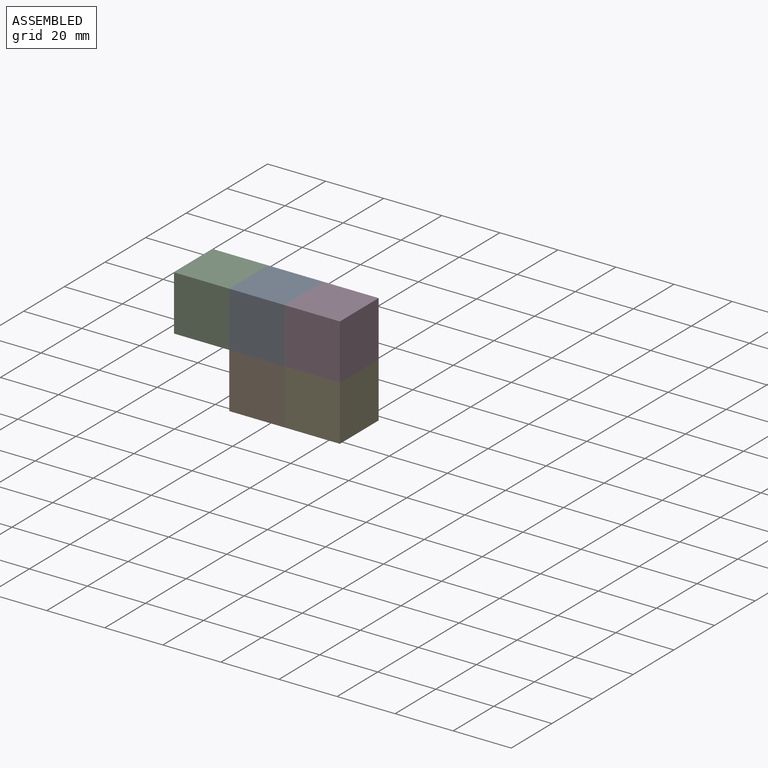
[diagram: assembled view]
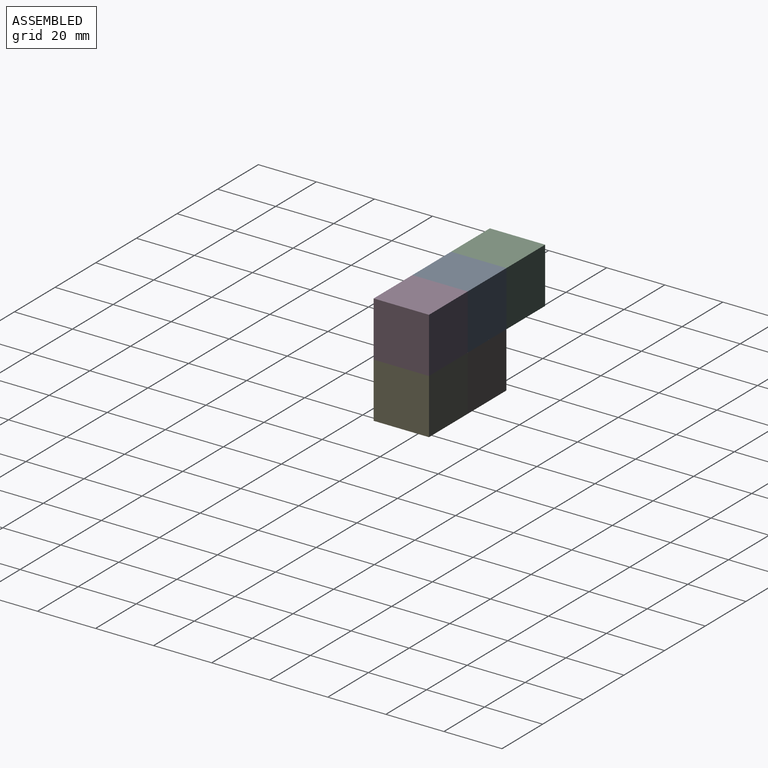
[diagram: assembled view, second angle]
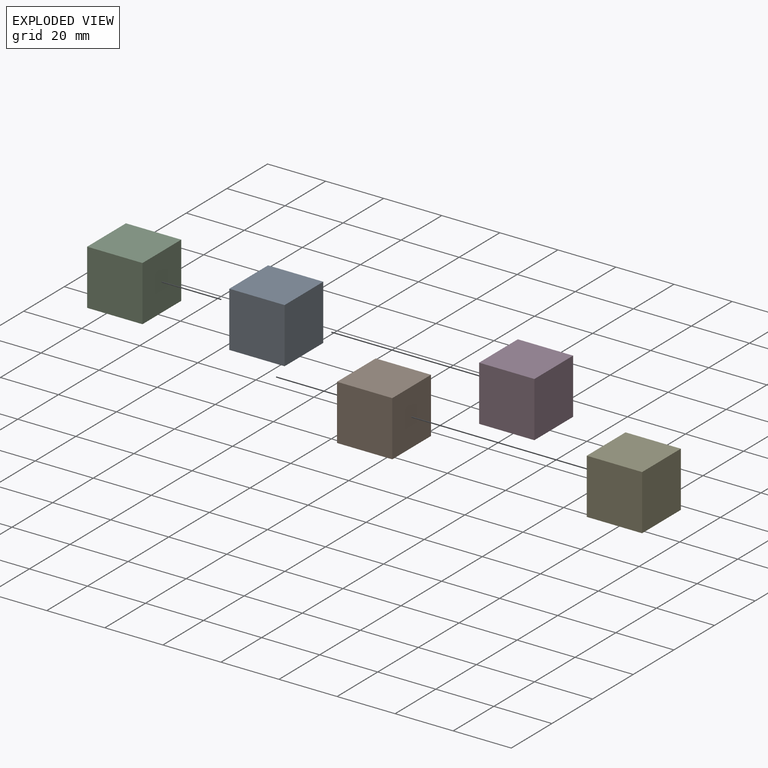
[diagram: exploded view]
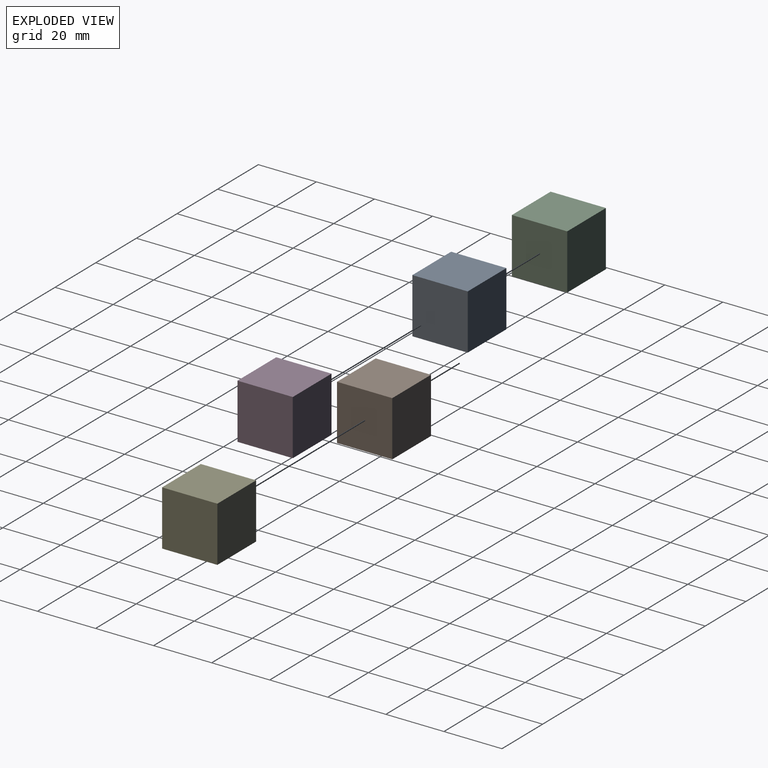
[diagram: exploded view, second angle]
ASSEMBLY  parts=5 mates=4
PART A: 6 faces, bbox 19.1x19.1x19.1 mm
  f0: plane 19.05x19.05mm, normal (0,0,-1), area 362.9mm2, adj f1,f3,f4,f5
  f1: plane 19.05x19.05mm, normal (1,0,0), area 362.9mm2, adj f0,f2,f4,f5
  f2: plane 19.05x19.05mm, normal (0,0,1), area 362.9mm2, adj f1,f3,f4,f5
  f3: plane 19.05x19.05mm, normal (-1,0,0), area 362.9mm2, adj f0,f2,f4,f5
  f4: plane 19.05x19.05mm, normal (0,-1,0), area 362.9mm2, adj f0,f1,f2,f3
  f5: plane 19.05x19.05mm, normal (0,1,0), area 362.9mm2, adj f0,f1,f2,f3
PART B: same geometry as A
PART C: same geometry as A
PART D: same geometry as A
PART E: same geometry as A
PLACE A t=(-18.98,9.55,19.03)mm
PLACE B t=(-18.98,9.55,-0.02)mm
PLACE C t=(-38.03,9.55,19.03)mm
PLACE D t=(0.07,9.55,19.03)mm
PLACE E t=(0.07,9.55,-0.02)mm fixed
MATE fastened D.f3 <-> A.f1  axis (-1,0,0) through (-9.45,0.03,19.03)mm
MATE fastened A.f3 <-> C.f1  axis (-1,0,0) through (-28.5,0.03,19.03)mm
MATE fastened E.f3 <-> B.f1  axis (-1,0,0) through (-9.45,0.03,-0.02)mm
MATE fastened E.f2 <-> D.f0  axis (0,0,1) through (0.07,0.03,9.51)mm
